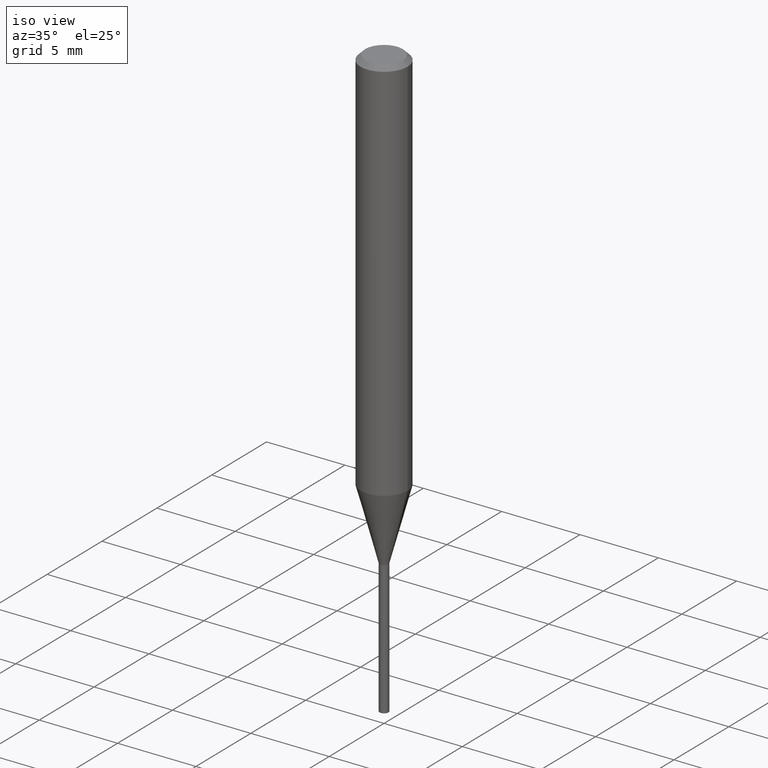
[diagram: clean part render]
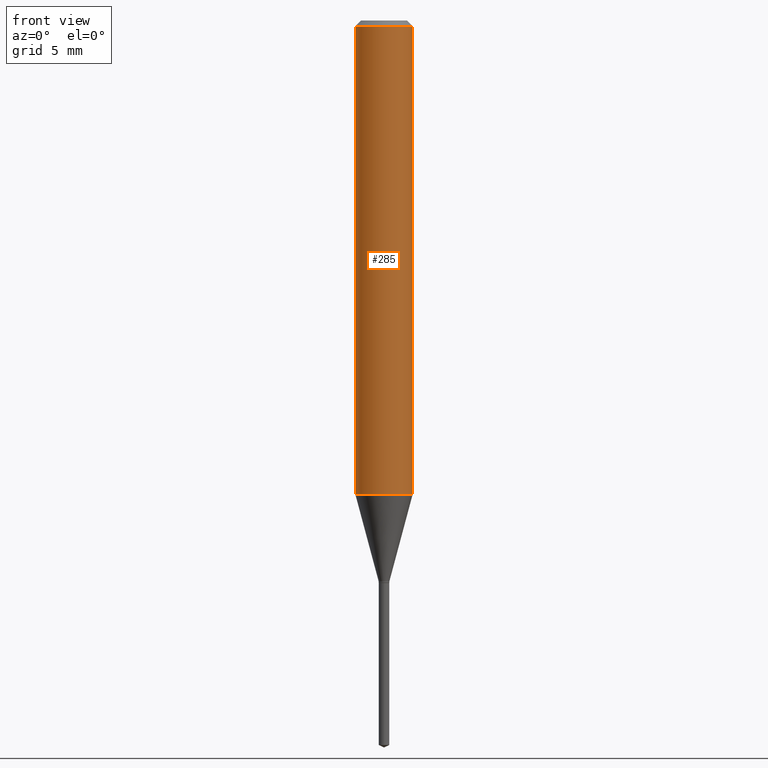
[diagram: tour spotlight — one face highlighted and labeled with its STEP entity id]
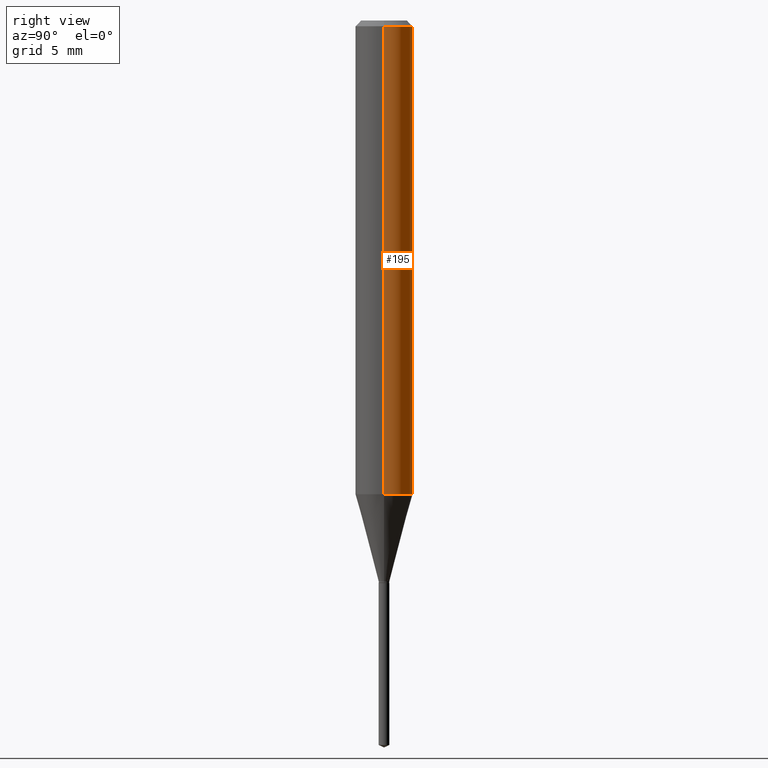
[diagram: tour spotlight — one face highlighted and labeled with its STEP entity id]
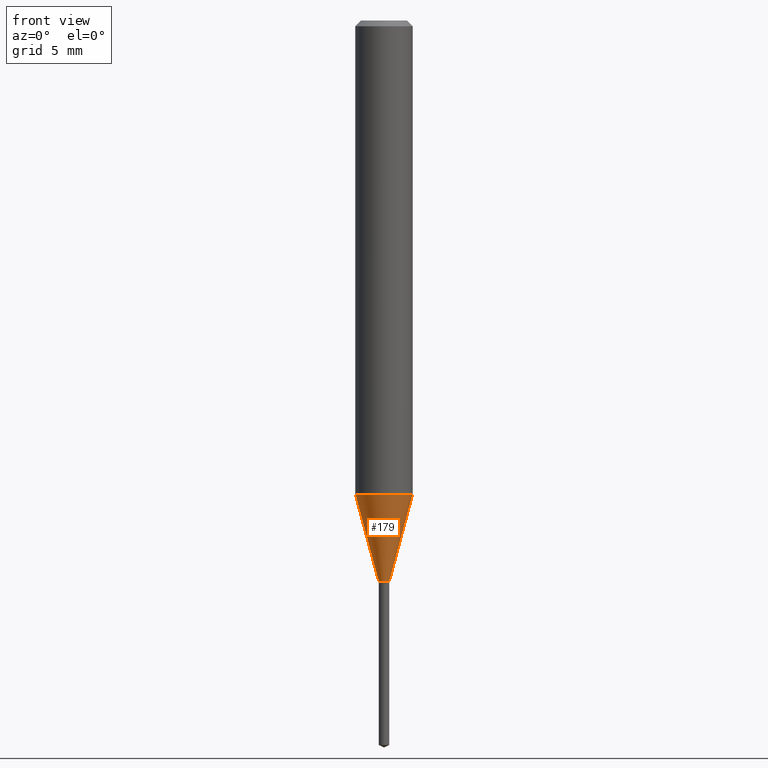
[diagram: tour spotlight — one face highlighted and labeled with its STEP entity id]
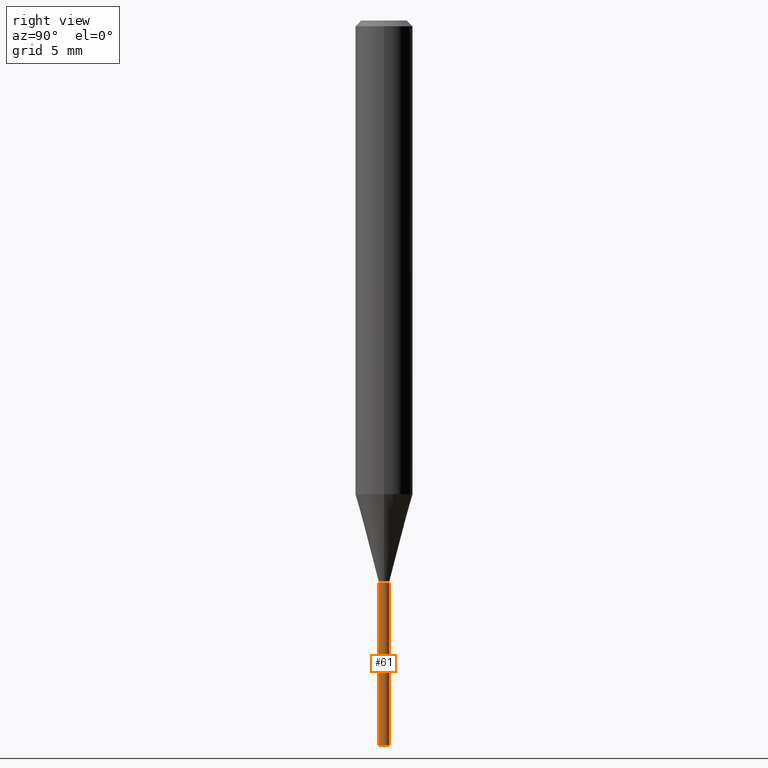
[diagram: tour spotlight — one face highlighted and labeled with its STEP entity id]
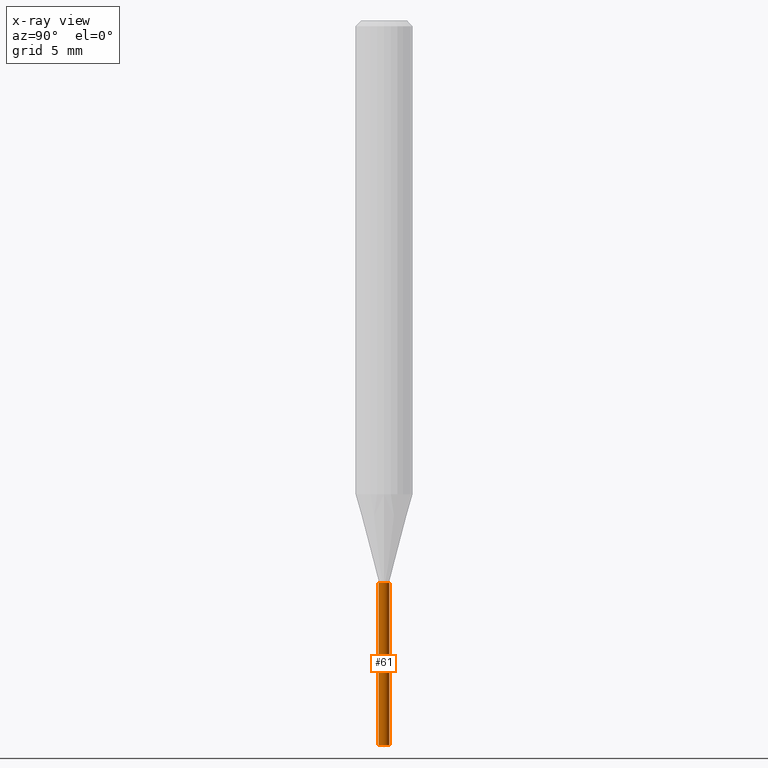
[diagram: x-ray of the same camera — body ghosted, this tour face saturated]
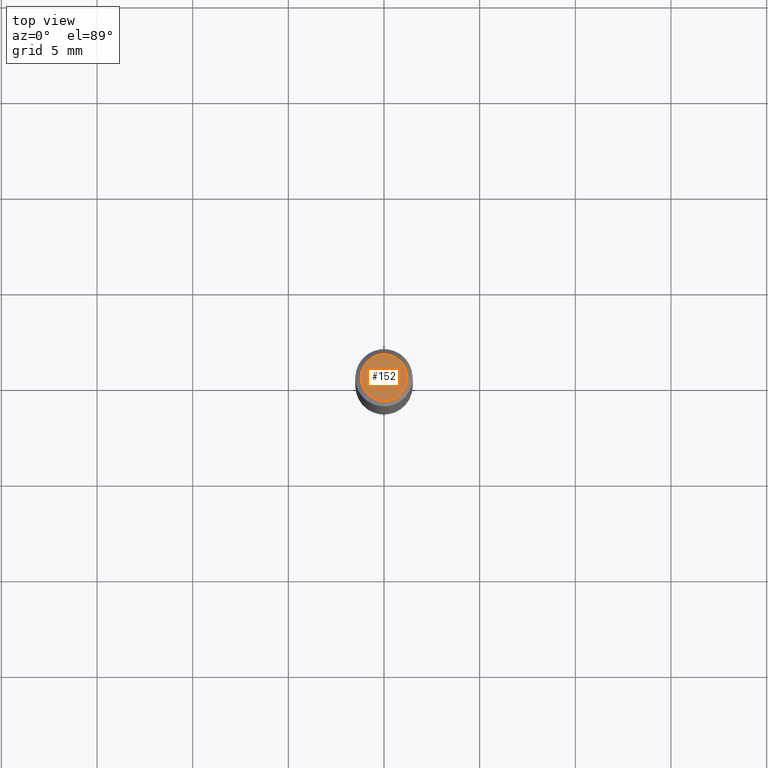
[diagram: tour spotlight — one face highlighted and labeled with its STEP entity id]
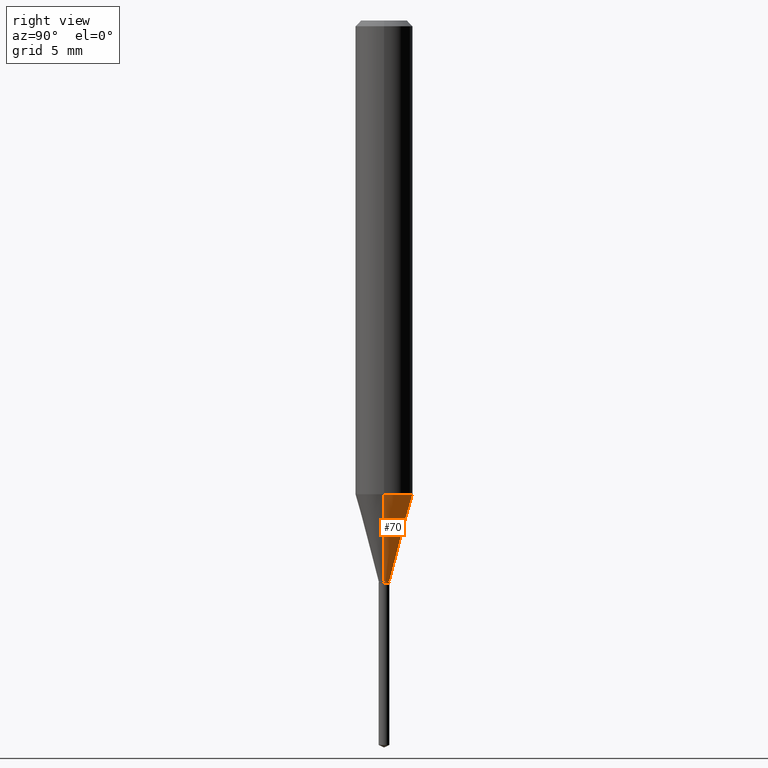
[diagram: tour spotlight — one face highlighted and labeled with its STEP entity id]
A machine part: a face-by-face anatomy tour. The part has 17 B-rep faces; the first image is the clean iso view, then the 6 largest visible faces are spotlighted one at a time (largest first), each with its STEP entity span.

Face 1 — front view, entity #285. In plain terms, the highlighted cylindrical surface (edge-blend (fillet) strip) has radius 1.4999 mm, axis along (-0, 0, 1).
Definition (entity closure, byte-faithful):
#22 = FACE_OUTER_BOUND ( 'NONE', #248, .T. ) ;
#23 = CARTESIAN_POINT ( 'NONE',  ( 0.05905000000000006077, -4.123439461173744764E-16, 2.879382386107503023E-30 ) ) ;
#29 = EDGE_CURVE ( 'NONE', #176, #223, #288, .T. ) ;
#40 = CARTESIAN_POINT ( 'NONE',  ( -0.05905000000000006077, 4.195754854663395916E-16, -2.904631170795524694E-30 ) ) ;
#53 = CARTESIAN_POINT ( 'NONE',  ( 2.384026301422862400E-29, -3.403757725993666876E-15, -0.9748749586963152414 ) ) ;
#62 = DIRECTION ( 'NONE',  ( 1.000000000000000000, -6.982962677686266711E-15, 0.000000000000000000 ) ) ;
#63 = VERTEX_POINT ( 'NONE', #155 ) ;
#71 = AXIS2_PLACEMENT_3D ( 'NONE', #212, #368, #62 ) ;
#81 = DIRECTION ( 'NONE',  ( -2.445468806185136877E-29, 3.491481338843145188E-15, 1.000000000000000000 ) ) ;
#87 = ORIENTED_EDGE ( 'NONE', *, *, #175, .T. ) ;
#105 = VECTOR ( 'NONE', #81, 39.37007874015748143 ) ;
#140 = CIRCLE ( 'NONE', #419, 0.05905000000000011628 ) ;
#153 = ORIENTED_EDGE ( 'NONE', *, *, #29, .F. ) ;
#155 = CARTESIAN_POINT ( 'NONE',  ( 0.05905000000000011628, -3.816101672111041796E-15, -0.9748749586963152414 ) ) ;
#175 = EDGE_CURVE ( 'NONE', #347, #63, #140, .T. ) ;
#176 = VERTEX_POINT ( 'NONE', #489 ) ;
#177 = CYLINDRICAL_SURFACE ( 'NONE', #335, 0.05905000000000006077 ) ;
#212 = CARTESIAN_POINT ( 'NONE',  ( 2.888098660104664204E-31, -4.123439461173780263E-17, -0.01181000000000007218 ) ) ;
#223 = VERTEX_POINT ( 'NONE', #450 ) ;
#248 = EDGE_LOOP ( 'NONE', ( #330, #87, #373, #153 ) ) ;
#285 = ADVANCED_FACE ( 'NONE', ( #22 ), #177, .T. ) ;
#288 = CIRCLE ( 'NONE', #71, 0.05904999999999999832 ) ;
#297 = EDGE_CURVE ( 'NONE', #63, #223, #372, .T. ) ;
#323 = CARTESIAN_POINT ( 'NONE',  ( 0.000000000000000000, 0.000000000000000000, 0.000000000000000000 ) ) ;
#330 = ORIENTED_EDGE ( 'NONE', *, *, #422, .F. ) ;
#333 = DIRECTION ( 'NONE',  ( -2.445468806185136597E-29, 3.491481338843145583E-15, 1.000000000000000000 ) ) ;
#335 = AXIS2_PLACEMENT_3D ( 'NONE', #323, #333, #484 ) ;
#340 = DIRECTION ( 'NONE',  ( -2.445468806185136597E-29, 3.491481338843145583E-15, 1.000000000000000000 ) ) ;
#347 = VERTEX_POINT ( 'NONE', #399 ) ;
#348 = DIRECTION ( 'NONE',  ( 1.000000000000000000, -6.982962677686266711E-15, 0.000000000000000000 ) ) ;
#355 = LINE ( 'NONE', #40, #105 ) ;
#368 = DIRECTION ( 'NONE',  ( -2.445468806185136597E-29, 3.491481338843145583E-15, 1.000000000000000000 ) ) ;
#372 = LINE ( 'NONE', #23, #388 ) ;
#373 = ORIENTED_EDGE ( 'NONE', *, *, #297, .T. ) ;
#388 = VECTOR ( 'NONE', #431, 39.37007874015748143 ) ;
#399 = CARTESIAN_POINT ( 'NONE',  ( -0.05905000000000011628, -2.984182240527327383E-15, -0.9748749586963152414 ) ) ;
#419 = AXIS2_PLACEMENT_3D ( 'NONE', #53, #340, #348 ) ;
#422 = EDGE_CURVE ( 'NONE', #347, #176, #355, .T. ) ;
#431 = DIRECTION ( 'NONE',  ( -2.445468806185136877E-29, 3.491481338843145188E-15, 1.000000000000000000 ) ) ;
#450 = CARTESIAN_POINT ( 'NONE',  ( 0.05904999999999999832, -4.535783407291118600E-16, -0.01181000000000007218 ) ) ;
#484 = DIRECTION ( 'NONE',  ( 1.000000000000000000, -6.982962677686266711E-15, 4.876176775795935793E-29 ) ) ;
#489 = CARTESIAN_POINT ( 'NONE',  ( -0.05904999999999999832, -1.302920574836362020E-15, -0.01181000000000007218 ) ) ;

Face 2 — right view, entity #195. In plain terms, the highlighted cylindrical surface (edge-blend (fillet) strip) has radius 1.4999 mm, axis along (-0, 0, 1).
Definition (entity closure, byte-faithful):
#18 = ORIENTED_EDGE ( 'NONE', *, *, #487, .T. ) ;
#23 = CARTESIAN_POINT ( 'NONE',  ( 0.05905000000000006077, -4.123439461173744764E-16, 2.879382386107503023E-30 ) ) ;
#40 = CARTESIAN_POINT ( 'NONE',  ( -0.05905000000000006077, 4.195754854663395916E-16, -2.904631170795524694E-30 ) ) ;
#46 = EDGE_LOOP ( 'NONE', ( #18, #114, #404, #293 ) ) ;
#63 = VERTEX_POINT ( 'NONE', #155 ) ;
#81 = DIRECTION ( 'NONE',  ( -2.445468806185136877E-29, 3.491481338843145188E-15, 1.000000000000000000 ) ) ;
#82 = AXIS2_PLACEMENT_3D ( 'NONE', #134, #196, #460 ) ;
#105 = VECTOR ( 'NONE', #81, 39.37007874015748143 ) ;
#114 = ORIENTED_EDGE ( 'NONE', *, *, #422, .T. ) ;
#134 = CARTESIAN_POINT ( 'NONE',  ( 2.384026301422862400E-29, -3.403757725993666876E-15, -0.9748749586963152414 ) ) ;
#155 = CARTESIAN_POINT ( 'NONE',  ( 0.05905000000000011628, -3.816101672111041796E-15, -0.9748749586963152414 ) ) ;
#159 = CARTESIAN_POINT ( 'NONE',  ( 0.000000000000000000, 0.000000000000000000, 0.000000000000000000 ) ) ;
#160 = DIRECTION ( 'NONE',  ( -2.445468806185136597E-29, 3.491481338843145583E-15, 1.000000000000000000 ) ) ;
#176 = VERTEX_POINT ( 'NONE', #489 ) ;
#183 = FACE_OUTER_BOUND ( 'NONE', #46, .T. ) ;
#195 = ADVANCED_FACE ( 'NONE', ( #183 ), #339, .T. ) ;
#196 = DIRECTION ( 'NONE',  ( -2.445468806185136597E-29, 3.491481338843145583E-15, 1.000000000000000000 ) ) ;
#223 = VERTEX_POINT ( 'NONE', #450 ) ;
#239 = DIRECTION ( 'NONE',  ( 1.000000000000000000, -6.982962677686266711E-15, 0.000000000000000000 ) ) ;
#283 = CARTESIAN_POINT ( 'NONE',  ( 2.888098660104664204E-31, -4.123439461173780263E-17, -0.01181000000000007218 ) ) ;
#289 = CIRCLE ( 'NONE', #349, 0.05904999999999999832 ) ;
#293 = ORIENTED_EDGE ( 'NONE', *, *, #297, .F. ) ;
#297 = EDGE_CURVE ( 'NONE', #63, #223, #372, .T. ) ;
#311 = DIRECTION ( 'NONE',  ( 1.000000000000000000, -6.982962677686266711E-15, 4.876176775795935793E-29 ) ) ;
#331 = EDGE_CURVE ( 'NONE', #223, #176, #289, .T. ) ;
#339 = CYLINDRICAL_SURFACE ( 'NONE', #417, 0.05905000000000006077 ) ;
#347 = VERTEX_POINT ( 'NONE', #399 ) ;
#349 = AXIS2_PLACEMENT_3D ( 'NONE', #283, #429, #239 ) ;
#355 = LINE ( 'NONE', #40, #105 ) ;
#372 = LINE ( 'NONE', #23, #388 ) ;
#381 = CIRCLE ( 'NONE', #82, 0.05905000000000011628 ) ;
#388 = VECTOR ( 'NONE', #431, 39.37007874015748143 ) ;
#399 = CARTESIAN_POINT ( 'NONE',  ( -0.05905000000000011628, -2.984182240527327383E-15, -0.9748749586963152414 ) ) ;
#404 = ORIENTED_EDGE ( 'NONE', *, *, #331, .F. ) ;
#417 = AXIS2_PLACEMENT_3D ( 'NONE', #159, #160, #311 ) ;
#422 = EDGE_CURVE ( 'NONE', #347, #176, #355, .T. ) ;
#429 = DIRECTION ( 'NONE',  ( -2.445468806185136597E-29, 3.491481338843145583E-15, 1.000000000000000000 ) ) ;
#431 = DIRECTION ( 'NONE',  ( -2.445468806185136877E-29, 3.491481338843145188E-15, 1.000000000000000000 ) ) ;
#450 = CARTESIAN_POINT ( 'NONE',  ( 0.05904999999999999832, -4.535783407291118600E-16, -0.01181000000000007218 ) ) ;
#460 = DIRECTION ( 'NONE',  ( 1.000000000000000000, -6.982962677686266711E-15, 0.000000000000000000 ) ) ;
#487 = EDGE_CURVE ( 'NONE', #63, #347, #381, .T. ) ;
#489 = CARTESIAN_POINT ( 'NONE',  ( -0.05904999999999999832, -1.302920574836362020E-15, -0.01181000000000007218 ) ) ;

Face 3 — front view, entity #179. In plain terms, the highlighted conical surface has half-angle 15 deg.
Definition (entity closure, byte-faithful):
#16 = DIRECTION ( 'NONE',  ( -0.2588190451025211281, 5.211531920934547886E-15, 0.9659258262890679791 ) ) ;
#31 = CARTESIAN_POINT ( 'NONE',  ( 2.822560096098884713E-29, -4.029867761292758977E-15, -1.154199999999999893 ) ) ;
#53 = CARTESIAN_POINT ( 'NONE',  ( 2.384026301422862400E-29, -3.403757725993666876E-15, -0.9748749586963152414 ) ) ;
#63 = VERTEX_POINT ( 'NONE', #155 ) ;
#75 = DIRECTION ( 'NONE',  ( 1.000000000000000000, -6.982962677686245411E-15, 0.000000000000000000 ) ) ;
#83 = CARTESIAN_POINT ( 'NONE',  ( 0.01099999999999999936, -4.106680350747307501E-15, -1.154199999999999893 ) ) ;
#128 = ORIENTED_EDGE ( 'NONE', *, *, #129, .T. ) ;
#129 = EDGE_CURVE ( 'NONE', #447, #63, #269, .T. ) ;
#130 = ORIENTED_EDGE ( 'NONE', *, *, #175, .F. ) ;
#133 = VECTOR ( 'NONE', #16, 39.37007874015748854 ) ;
#140 = CIRCLE ( 'NONE', #419, 0.05905000000000011628 ) ;
#146 = FACE_OUTER_BOUND ( 'NONE', #336, .T. ) ;
#148 = DIRECTION ( 'NONE',  ( -2.445468806185136597E-29, 3.491481338843145583E-15, 1.000000000000000000 ) ) ;
#155 = CARTESIAN_POINT ( 'NONE',  ( 0.05905000000000011628, -3.816101672111041796E-15, -0.9748749586963152414 ) ) ;
#157 = CARTESIAN_POINT ( 'NONE',  ( -0.01099999999999999936, -3.956596134233527308E-15, -1.154199999999999893 ) ) ;
#175 = EDGE_CURVE ( 'NONE', #347, #63, #140, .T. ) ;
#179 = ADVANCED_FACE ( 'NONE', ( #146 ), #375, .T. ) ;
#180 = ORIENTED_EDGE ( 'NONE', *, *, #281, .F. ) ;
#181 = AXIS2_PLACEMENT_3D ( 'NONE', #31, #148, #75 ) ;
#184 = ORIENTED_EDGE ( 'NONE', *, *, #413, .T. ) ;
#202 = DIRECTION ( 'NONE',  ( -2.445468806185136597E-29, 3.491481338843145583E-15, 1.000000000000000000 ) ) ;
#240 = DIRECTION ( 'NONE',  ( 1.000000000000000000, -6.982962677686245411E-15, 0.000000000000000000 ) ) ;
#256 = AXIS2_PLACEMENT_3D ( 'NONE', #394, #202, #240 ) ;
#259 = VERTEX_POINT ( 'NONE', #157 ) ;
#269 = LINE ( 'NONE', #83, #272 ) ;
#272 = VECTOR ( 'NONE', #346, 39.37007874015748854 ) ;
#277 = LINE ( 'NONE', #398, #133 ) ;
#280 = CARTESIAN_POINT ( 'NONE',  ( 0.01099999999999999936, -4.106680350747307501E-15, -1.154199999999999893 ) ) ;
#281 = EDGE_CURVE ( 'NONE', #259, #347, #277, .T. ) ;
#336 = EDGE_LOOP ( 'NONE', ( #180, #184, #128, #130 ) ) ;
#340 = DIRECTION ( 'NONE',  ( -2.445468806185136597E-29, 3.491481338843145583E-15, 1.000000000000000000 ) ) ;
#346 = DIRECTION ( 'NONE',  ( 0.2588190451025211281, 1.565188264969622954E-15, 0.9659258262890679791 ) ) ;
#347 = VERTEX_POINT ( 'NONE', #399 ) ;
#348 = DIRECTION ( 'NONE',  ( 1.000000000000000000, -6.982962677686266711E-15, 0.000000000000000000 ) ) ;
#375 = CONICAL_SURFACE ( 'NONE', #181, 0.01099999999999999936, 0.2617993877991498519 ) ;
#392 = CIRCLE ( 'NONE', #256, 0.01099999999999999936 ) ;
#394 = CARTESIAN_POINT ( 'NONE',  ( 2.822560096098884713E-29, -4.029867761292758977E-15, -1.154199999999999893 ) ) ;
#398 = CARTESIAN_POINT ( 'NONE',  ( -0.01099999999999999936, -3.951708060359147098E-15, -1.154199999999999893 ) ) ;
#399 = CARTESIAN_POINT ( 'NONE',  ( -0.05905000000000011628, -2.984182240527327383E-15, -0.9748749586963152414 ) ) ;
#413 = EDGE_CURVE ( 'NONE', #259, #447, #392, .T. ) ;
#419 = AXIS2_PLACEMENT_3D ( 'NONE', #53, #340, #348 ) ;
#447 = VERTEX_POINT ( 'NONE', #280 ) ;

Face 4 — right view, entity #61. An x-ray twin of the same camera follows (body ghosted, this face saturated) — the face is partly hidden behind the body. In plain terms, the highlighted cylindrical surface (edge-blend (fillet) strip) has radius 0.2794 mm, axis along (-0, 0, 1).
Definition (entity closure, byte-faithful):
#3 = CARTESIAN_POINT ( 'NONE',  ( 7.815970093364752538E-17, 0.01099999999999595919, -1.157499999999999973 ) ) ;
#6 = CARTESIAN_POINT ( 'NONE',  ( -7.681258945451250718E-17, -0.01100000000000521221, -1.490970615760294882 ) ) ;
#15 = EDGE_CURVE ( 'NONE', #476, #156, #125, .T. ) ;
#36 = CYLINDRICAL_SURFACE ( 'NONE', #80, 0.01100000000000000110 ) ;
#37 = CARTESIAN_POINT ( 'NONE',  ( 3.643263205341343331E-29, -5.209790227071326827E-15, -1.490970615760294882 ) ) ;
#41 = CARTESIAN_POINT ( 'NONE',  ( -7.681258945452060533E-17, -0.01100000000000404127, -1.157499999999999973 ) ) ;
#61 = ADVANCED_FACE ( 'NONE', ( #188 ), #36, .T. ) ;
#77 = ORIENTED_EDGE ( 'NONE', *, *, #214, .F. ) ;
#80 = AXIS2_PLACEMENT_3D ( 'NONE', #425, #304, #151 ) ;
#103 = VECTOR ( 'NONE', #109, 39.37007874015748143 ) ;
#109 = DIRECTION ( 'NONE',  ( -2.436895557736890074E-29, 3.503758718580032420E-15, 1.000000000000000000 ) ) ;
#125 = CIRCLE ( 'NONE', #170, 0.01099999999999999936 ) ;
#151 = DIRECTION ( 'NONE',  ( -6.982962677686265922E-15, -1.000000000000000000, 0.000000000000000000 ) ) ;
#156 = VERTEX_POINT ( 'NONE', #3 ) ;
#164 = DIRECTION ( 'NONE',  ( -6.982962677686265922E-15, -1.000000000000000000, 0.000000000000000000 ) ) ;
#170 = AXIS2_PLACEMENT_3D ( 'NONE', #290, #210, #360 ) ;
#188 = FACE_OUTER_BOUND ( 'NONE', #251, .T. ) ;
#210 = DIRECTION ( 'NONE',  ( -2.436895557736890355E-29, 3.503758718580032420E-15, 1.000000000000000000 ) ) ;
#214 = EDGE_CURVE ( 'NONE', #332, #476, #224, .T. ) ;
#224 = LINE ( 'NONE', #308, #343 ) ;
#251 = EDGE_LOOP ( 'NONE', ( #321, #407, #310, #77 ) ) ;
#262 = VERTEX_POINT ( 'NONE', #412 ) ;
#290 = CARTESIAN_POINT ( 'NONE',  ( 2.830630143159295633E-29, -4.041389649710940900E-15, -1.157499999999999973 ) ) ;
#296 = LINE ( 'NONE', #448, #103 ) ;
#299 = DIRECTION ( 'NONE',  ( -2.436895557736890074E-29, 3.503758718580032420E-15, 1.000000000000000000 ) ) ;
#304 = DIRECTION ( 'NONE',  ( -2.436895557736890355E-29, 3.503758718580032420E-15, 1.000000000000000000 ) ) ;
#308 = CARTESIAN_POINT ( 'NONE',  ( -7.681258945452061765E-17, -0.01100000000000404300, -1.157499999999999973 ) ) ;
#310 = ORIENTED_EDGE ( 'NONE', *, *, #15, .F. ) ;
#315 = EDGE_CURVE ( 'NONE', #262, #156, #296, .T. ) ;
#321 = ORIENTED_EDGE ( 'NONE', *, *, #439, .T. ) ;
#332 = VERTEX_POINT ( 'NONE', #6 ) ;
#343 = VECTOR ( 'NONE', #299, 39.37007874015748143 ) ;
#352 = DIRECTION ( 'NONE',  ( -2.436895557736890355E-29, 3.503758718580032420E-15, 1.000000000000000000 ) ) ;
#360 = DIRECTION ( 'NONE',  ( -6.982962677686265922E-15, -1.000000000000000000, 0.000000000000000000 ) ) ;
#407 = ORIENTED_EDGE ( 'NONE', *, *, #315, .T. ) ;
#411 = CIRCLE ( 'NONE', #479, 0.01100000000000000283 ) ;
#412 = CARTESIAN_POINT ( 'NONE',  ( 7.815970093364746375E-17, 0.01099999999999479346, -1.490970615760294882 ) ) ;
#425 = CARTESIAN_POINT ( 'NONE',  ( 2.830630143159295633E-29, -4.041389649710940900E-15, -1.157499999999999973 ) ) ;
#439 = EDGE_CURVE ( 'NONE', #332, #262, #411, .T. ) ;
#448 = CARTESIAN_POINT ( 'NONE',  ( 7.815970093363932862E-17, 0.01099999999999595919, -1.157499999999999973 ) ) ;
#476 = VERTEX_POINT ( 'NONE', #41 ) ;
#479 = AXIS2_PLACEMENT_3D ( 'NONE', #37, #352, #164 ) ;

Face 5 — top view, entity #152. In plain terms, the highlighted planar face has unit normal (0, -0, -1).
Definition (entity closure, byte-faithful):
#26 = CIRCLE ( 'NONE', #48, 0.04724000000000000421 ) ;
#48 = AXIS2_PLACEMENT_3D ( 'NONE', #194, #120, #74 ) ;
#74 = DIRECTION ( 'NONE',  ( 1.000000000000000000, -6.982962677686266711E-15, 4.876185090822587894E-29 ) ) ;
#85 = CARTESIAN_POINT ( 'NONE',  ( 4.132873053354867254E-48, -5.900647395337818946E-34, -1.690012582823346072E-19 ) ) ;
#95 = CARTESIAN_POINT ( 'NONE',  ( 0.04724000000000000421, -3.852183633974369345E-16, -3.380025165621689721E-19 ) ) ;
#120 = DIRECTION ( 'NONE',  ( -2.445468806185136597E-29, 3.491481338843145583E-15, 1.000000000000000000 ) ) ;
#126 = VERTEX_POINT ( 'NONE', #236 ) ;
#132 = DIRECTION ( 'NONE',  ( 1.000000000000000000, -6.982962677686266711E-15, 4.876185090822587894E-29 ) ) ;
#149 = AXIS2_PLACEMENT_3D ( 'NONE', #85, #231, #384 ) ;
#152 = ADVANCED_FACE ( 'NONE', ( #275 ), #421, .F. ) ;
#194 = CARTESIAN_POINT ( 'NONE',  ( 8.265746106709734507E-48, -1.180129479067563789E-33, -3.380025165646692144E-19 ) ) ;
#228 = ORIENTED_EDGE ( 'NONE', *, *, #473, .T. ) ;
#231 = DIRECTION ( 'NONE',  ( 2.438088387897960049E-29, -3.491481338843145188E-15, -1.000000000000000000 ) ) ;
#236 = CARTESIAN_POINT ( 'NONE',  ( -0.04724000000000000421, 3.504923541997677355E-16, -3.380025165670481712E-19 ) ) ;
#265 = EDGE_CURVE ( 'NONE', #126, #301, #26, .T. ) ;
#275 = FACE_OUTER_BOUND ( 'NONE', #358, .T. ) ;
#301 = VERTEX_POINT ( 'NONE', #95 ) ;
#318 = AXIS2_PLACEMENT_3D ( 'NONE', #359, #474, #132 ) ;
#358 = EDGE_LOOP ( 'NONE', ( #371, #228 ) ) ;
#359 = CARTESIAN_POINT ( 'NONE',  ( 8.265746106709734507E-48, -1.180129479067563789E-33, -3.380025165646692144E-19 ) ) ;
#367 = CIRCLE ( 'NONE', #318, 0.04724000000000000421 ) ;
#371 = ORIENTED_EDGE ( 'NONE', *, *, #265, .T. ) ;
#384 = DIRECTION ( 'NONE',  ( -1.000000000000000000, 6.982962677686265922E-15, -4.876176775795935793E-29 ) ) ;
#421 = PLANE ( 'NONE',  #149 ) ;
#473 = EDGE_CURVE ( 'NONE', #301, #126, #367, .T. ) ;
#474 = DIRECTION ( 'NONE',  ( -2.445468806185136597E-29, 3.491481338843145583E-15, 1.000000000000000000 ) ) ;

Face 6 — right view, entity #70. In plain terms, the highlighted conical surface has half-angle 15 deg.
Definition (entity closure, byte-faithful):
#14 = ORIENTED_EDGE ( 'NONE', *, *, #281, .T. ) ;
#16 = DIRECTION ( 'NONE',  ( -0.2588190451025211281, 5.211531920934547886E-15, 0.9659258262890679791 ) ) ;
#63 = VERTEX_POINT ( 'NONE', #155 ) ;
#70 = ADVANCED_FACE ( 'NONE', ( #192 ), #205, .T. ) ;
#72 = AXIS2_PLACEMENT_3D ( 'NONE', #117, #426, #115 ) ;
#82 = AXIS2_PLACEMENT_3D ( 'NONE', #134, #196, #460 ) ;
#83 = CARTESIAN_POINT ( 'NONE',  ( 0.01099999999999999936, -4.106680350747307501E-15, -1.154199999999999893 ) ) ;
#115 = DIRECTION ( 'NONE',  ( 1.000000000000000000, -6.982962677686245411E-15, 0.000000000000000000 ) ) ;
#117 = CARTESIAN_POINT ( 'NONE',  ( 2.822560096098884713E-29, -4.029867761292758977E-15, -1.154199999999999893 ) ) ;
#129 = EDGE_CURVE ( 'NONE', #447, #63, #269, .T. ) ;
#133 = VECTOR ( 'NONE', #16, 39.37007874015748854 ) ;
#134 = CARTESIAN_POINT ( 'NONE',  ( 2.384026301422862400E-29, -3.403757725993666876E-15, -0.9748749586963152414 ) ) ;
#155 = CARTESIAN_POINT ( 'NONE',  ( 0.05905000000000011628, -3.816101672111041796E-15, -0.9748749586963152414 ) ) ;
#157 = CARTESIAN_POINT ( 'NONE',  ( -0.01099999999999999936, -3.956596134233527308E-15, -1.154199999999999893 ) ) ;
#185 = ORIENTED_EDGE ( 'NONE', *, *, #129, .F. ) ;
#192 = FACE_OUTER_BOUND ( 'NONE', #369, .T. ) ;
#196 = DIRECTION ( 'NONE',  ( -2.445468806185136597E-29, 3.491481338843145583E-15, 1.000000000000000000 ) ) ;
#205 = CONICAL_SURFACE ( 'NONE', #72, 0.01099999999999999936, 0.2617993877991498519 ) ;
#206 = CIRCLE ( 'NONE', #486, 0.01099999999999999936 ) ;
#249 = EDGE_CURVE ( 'NONE', #447, #259, #206, .T. ) ;
#259 = VERTEX_POINT ( 'NONE', #157 ) ;
#269 = LINE ( 'NONE', #83, #272 ) ;
#272 = VECTOR ( 'NONE', #346, 39.37007874015748854 ) ;
#276 = ORIENTED_EDGE ( 'NONE', *, *, #487, .F. ) ;
#277 = LINE ( 'NONE', #398, #133 ) ;
#280 = CARTESIAN_POINT ( 'NONE',  ( 0.01099999999999999936, -4.106680350747307501E-15, -1.154199999999999893 ) ) ;
#281 = EDGE_CURVE ( 'NONE', #259, #347, #277, .T. ) ;
#345 = DIRECTION ( 'NONE',  ( 1.000000000000000000, -6.982962677686245411E-15, 0.000000000000000000 ) ) ;
#346 = DIRECTION ( 'NONE',  ( 0.2588190451025211281, 1.565188264969622954E-15, 0.9659258262890679791 ) ) ;
#347 = VERTEX_POINT ( 'NONE', #399 ) ;
#369 = EDGE_LOOP ( 'NONE', ( #393, #14, #276, #185 ) ) ;
#379 = DIRECTION ( 'NONE',  ( -2.445468806185136597E-29, 3.491481338843145583E-15, 1.000000000000000000 ) ) ;
#381 = CIRCLE ( 'NONE', #82, 0.05905000000000011628 ) ;
#382 = CARTESIAN_POINT ( 'NONE',  ( 2.822560096098884713E-29, -4.029867761292758977E-15, -1.154199999999999893 ) ) ;
#393 = ORIENTED_EDGE ( 'NONE', *, *, #249, .T. ) ;
#398 = CARTESIAN_POINT ( 'NONE',  ( -0.01099999999999999936, -3.951708060359147098E-15, -1.154199999999999893 ) ) ;
#399 = CARTESIAN_POINT ( 'NONE',  ( -0.05905000000000011628, -2.984182240527327383E-15, -0.9748749586963152414 ) ) ;
#426 = DIRECTION ( 'NONE',  ( -2.445468806185136597E-29, 3.491481338843145583E-15, 1.000000000000000000 ) ) ;
#447 = VERTEX_POINT ( 'NONE', #280 ) ;
#460 = DIRECTION ( 'NONE',  ( 1.000000000000000000, -6.982962677686266711E-15, 0.000000000000000000 ) ) ;
#486 = AXIS2_PLACEMENT_3D ( 'NONE', #382, #379, #345 ) ;
#487 = EDGE_CURVE ( 'NONE', #63, #347, #381, .T. ) ;